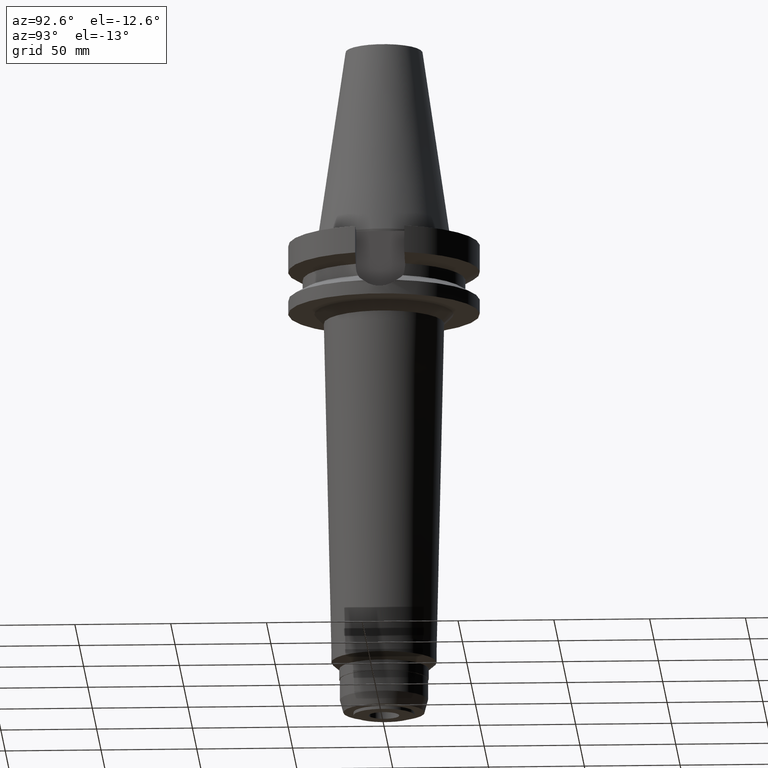
[diagram: clean part render]
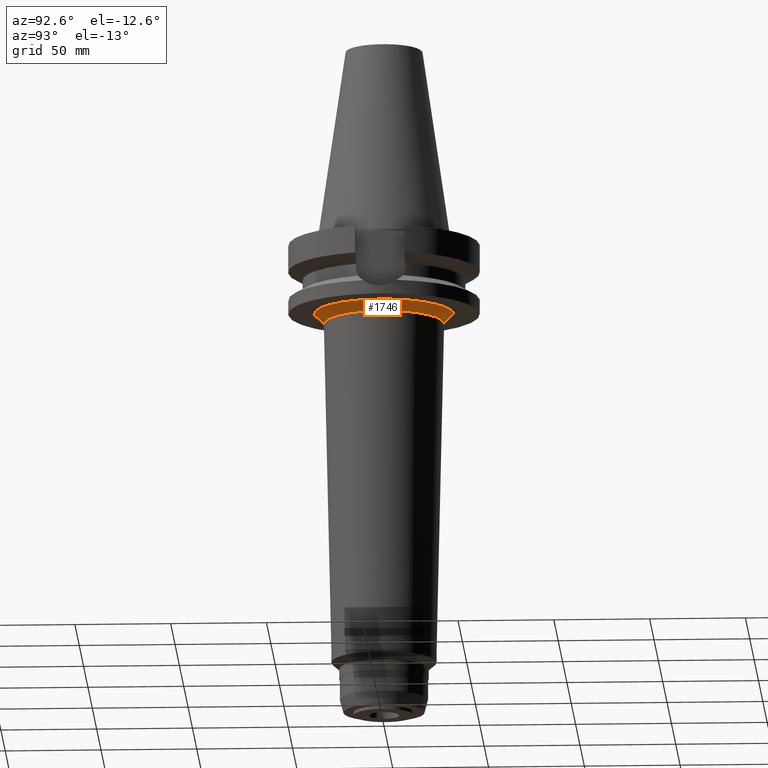
[diagram: same view with one face highlighted and labeled with its STEP entity id]
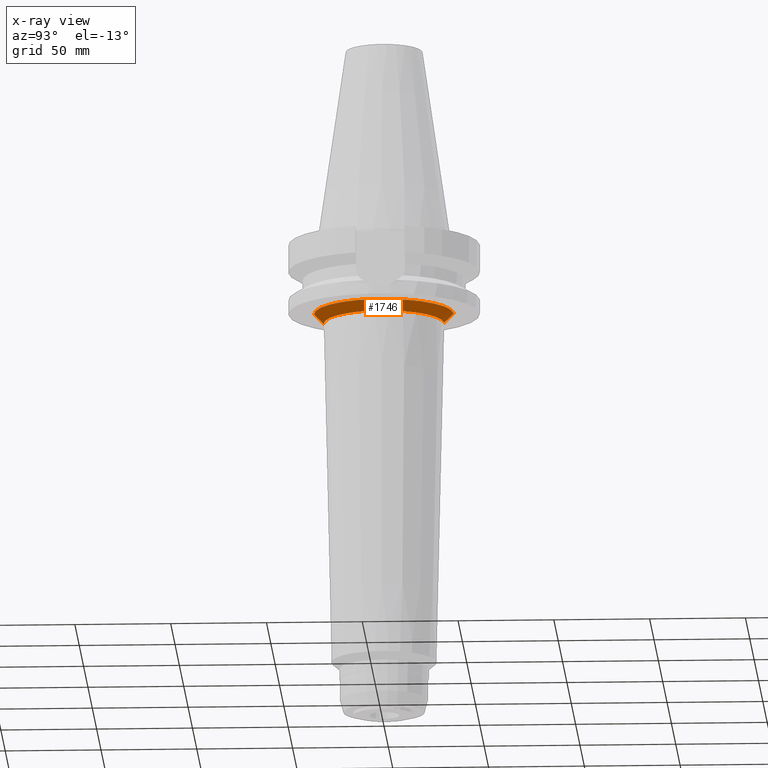
[diagram: x-ray of the same camera — body ghosted, the highlighted face saturated]
A machine part, auxiliary view. The second image highlights one B-rep face of the part: STEP entity #1746.
The next image is the same camera in x-ray: the body ghosted, the highlighted face saturated — about 0% of this face is hidden behind the body in this view.
In plain terms, the highlighted conical surface has half-angle 45 deg.
Its self-contained STEP definition (entity closure, byte-faithful):
#458=CARTESIAN_POINT('',(0.E0,0.E0,-4.3E1));
#459=DIRECTION('',(0.E0,0.E0,1.E0));
#460=DIRECTION('',(0.E0,-1.E0,0.E0));
#461=AXIS2_PLACEMENT_3D('',#458,#459,#460);
#466=DIRECTION('',(0.E0,-7.071067811868E-1,-7.071067811863E-1));
#467=VECTOR('',#466,7.071067811868E0);
#468=CARTESIAN_POINT('',(0.E0,3.638806338829E1,-3.8E1));
#469=LINE('',#468,#467);
#473=DIRECTION('',(0.E0,7.071067811868E-1,-7.071067811863E-1));
#474=VECTOR('',#473,7.071067811868E0);
#475=CARTESIAN_POINT('',(0.E0,-3.638806338829E1,-3.8E1));
#476=LINE('',#475,#474);
#512=CARTESIAN_POINT('',(0.E0,0.E0,-3.8E1));
#513=DIRECTION('',(0.E0,0.E0,-1.E0));
#514=DIRECTION('',(0.E0,1.E0,0.E0));
#515=AXIS2_PLACEMENT_3D('',#512,#513,#514);
#1197=CARTESIAN_POINT('',(0.E0,3.138806338829E1,-4.3E1));
#1198=VERTEX_POINT('',#1197);
#1199=CARTESIAN_POINT('',(0.E0,-3.138806338829E1,-4.3E1));
#1200=VERTEX_POINT('',#1199);
#1201=CARTESIAN_POINT('',(0.E0,3.638806338829E1,-3.8E1));
#1202=VERTEX_POINT('',#1201);
#1203=CARTESIAN_POINT('',(0.E0,-3.638806338829E1,-3.8E1));
#1204=VERTEX_POINT('',#1203);
#1732=CARTESIAN_POINT('',(0.E0,0.E0,-4.05E1));
#1733=DIRECTION('',(0.E0,0.E0,1.E0));
#1734=DIRECTION('',(0.E0,1.E0,0.E0));
#1735=AXIS2_PLACEMENT_3D('',#1732,#1733,#1734);
#1736=CONICAL_SURFACE('',#1735,3.388806338829E1,4.5E1);
#1738=ORIENTED_EDGE('',*,*,#1737,.T.);
#1739=ORIENTED_EDGE('',*,*,#1727,.F.);
#1741=ORIENTED_EDGE('',*,*,#1740,.F.);
#1743=ORIENTED_EDGE('',*,*,#1742,.F.);
#1744=EDGE_LOOP('',(#1738,#1739,#1741,#1743));
#1745=FACE_OUTER_BOUND('',#1744,.F.);
#462=CIRCLE('',#461,3.138806338828E1);
#516=CIRCLE('',#515,3.638806338829E1);
#1727=EDGE_CURVE('',#1200,#1198,#462,.T.);
#1737=EDGE_CURVE('',#1202,#1198,#469,.T.);
#1740=EDGE_CURVE('',#1204,#1200,#476,.T.);
#1742=EDGE_CURVE('',#1202,#1204,#516,.T.);
#1746=ADVANCED_FACE('',(#1745),#1736,.T.);